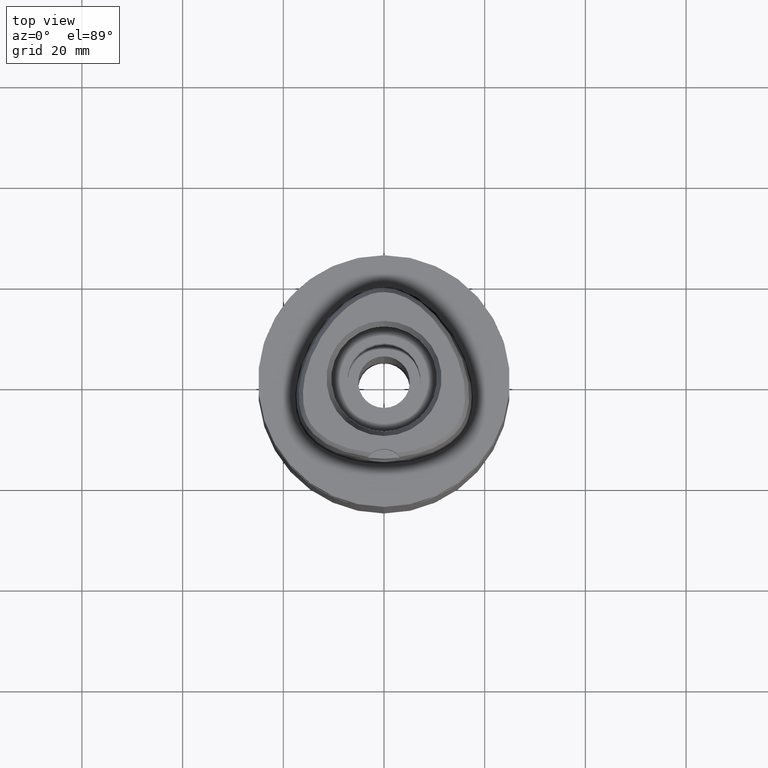
[diagram: clean part render]
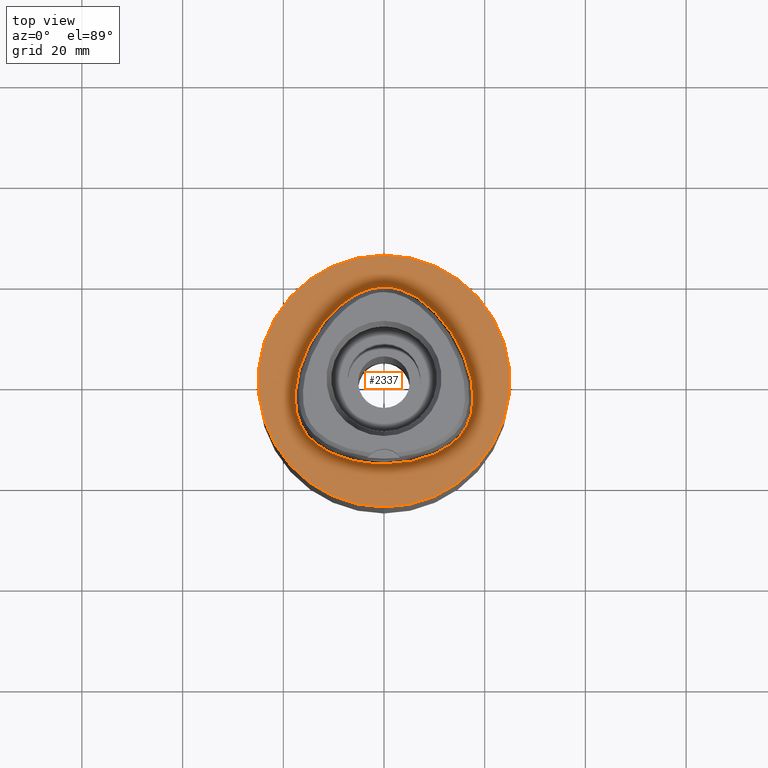
[diagram: same view with one face highlighted and labeled with its STEP entity id]
A machine part, top view. The second image highlights one B-rep face of the part: STEP entity #2337.
In plain terms, the highlighted planar face has unit normal (0, 0, -1).
Its self-contained STEP definition (entity closure, byte-faithful):
#276=CARTESIAN_POINT('',(0.E0,0.E0,0.E0));
#277=DIRECTION('',(0.E0,0.E0,-1.E0));
#278=DIRECTION('',(0.E0,-1.E0,0.E0));
#279=AXIS2_PLACEMENT_3D('',#276,#277,#278);
#284=CARTESIAN_POINT('',(0.E0,0.E0,0.E0));
#285=DIRECTION('',(0.E0,0.E0,-1.E0));
#286=DIRECTION('',(0.E0,1.E0,0.E0));
#287=AXIS2_PLACEMENT_3D('',#284,#285,#286);
#292=CARTESIAN_POINT('',(-1.725937765651E-11,-1.6455E1,1.598351081119E-13));
#293=CARTESIAN_POINT('',(7.520157929342E-1,-1.6455E1,1.598351081119E-13));
#294=CARTESIAN_POINT('',(2.228751603708E0,-1.639617775798E1,
-7.417973183044E-14));
#295=CARTESIAN_POINT('',(4.393681074047E0,-1.613833024912E1,
1.987639923872E-14));
#296=CARTESIAN_POINT('',(6.413326672136E0,-1.573035282199E1,0.E0));
#297=CARTESIAN_POINT('',(8.249758702177E0,-1.519992803891E1,0.E0));
#298=CARTESIAN_POINT('',(9.881260280086E0,-1.457563775507E1,0.E0));
#299=CARTESIAN_POINT('',(1.130599404993E1,-1.388349981809E1,0.E0));
#300=CARTESIAN_POINT('',(1.253525091458E1,-1.314358966096E1,0.E0));
#301=CARTESIAN_POINT('',(1.358563270400E1,-1.237068193648E1,0.E0));
#302=CARTESIAN_POINT('',(1.447667086138E1,-1.157389547554E1,0.E0));
#303=CARTESIAN_POINT('',(1.522785349031E1,-1.075590864467E1,0.E0));
#304=CARTESIAN_POINT('',(1.584981472881E1,-9.925513410667E0,0.E0));
#305=CARTESIAN_POINT('',(1.636750753720E1,-9.064008785729E0,0.E0));
#306=CARTESIAN_POINT('',(1.680170761781E1,-8.136313534643E0,0.E0));
#307=CARTESIAN_POINT('',(1.716057632778E1,-7.112991831704E0,0.E0));
#308=CARTESIAN_POINT('',(1.743544496102E1,-5.981469960310E0,0.E0));
#309=CARTESIAN_POINT('',(1.761466094266E1,-4.728414923585E0,0.E0));
#310=CARTESIAN_POINT('',(1.768212068540E1,-3.340605398271E0,0.E0));
#311=CARTESIAN_POINT('',(1.761770514147E1,-1.808689938760E0,0.E0));
#312=CARTESIAN_POINT('',(1.739870049570E1,-1.302912755114E-1,0.E0));
#313=CARTESIAN_POINT('',(1.700256973215E1,1.685338659502E0,0.E0));
#314=CARTESIAN_POINT('',(1.641182380327E1,3.611925648949E0,0.E0));
#315=CARTESIAN_POINT('',(1.561965772021E1,5.604409403723E0,0.E0));
#316=CARTESIAN_POINT('',(1.463647989598E1,7.598586442107E0,0.E0));
#317=CARTESIAN_POINT('',(1.348925047965E1,9.524885933704E0,0.E0));
#318=CARTESIAN_POINT('',(1.221603812654E1,1.132228715007E1,0.E0));
#319=CARTESIAN_POINT('',(1.086624200261E1,1.293684755208E1,0.E0));
#320=CARTESIAN_POINT('',(9.488798660829E0,1.433550899110E1,0.E0));
#321=CARTESIAN_POINT('',(8.122181354898E0,1.550918780252E1,0.E0));
#322=CARTESIAN_POINT('',(6.793933088004E0,1.646481028605E1,0.E0));
#323=CARTESIAN_POINT('',(5.519398583981E0,1.722019252600E1,0.E0));
#324=CARTESIAN_POINT('',(4.304850156292E0,1.779710622382E1,0.E0));
#325=CARTESIAN_POINT('',(3.150245309225E0,1.821729155277E1,0.E0));
#326=CARTESIAN_POINT('',(2.051084138601E0,1.850002548487E1,1.972913256226E-14));
#327=CARTESIAN_POINT('',(1.002630798547E0,1.866093222631E1,
-7.363012511162E-14));
#328=CARTESIAN_POINT('',(3.294668735290E-1,1.869499999998E1,
1.586508702189E-13));
#329=CARTESIAN_POINT('',(7.243243713352E-11,1.869499999998E1,
1.586508702189E-13));
#334=CARTESIAN_POINT('',(7.243243713352E-11,1.869499999998E1,
1.586508702189E-13));
#335=CARTESIAN_POINT('',(-3.295346810893E-1,1.869499999998E1,
1.586508702189E-13));
#336=CARTESIAN_POINT('',(-1.002816635253E0,1.866092054673E1,
-7.363012511162E-14));
#337=CARTESIAN_POINT('',(-2.051467965772E0,1.849994924685E1,
1.972913256226E-14));
#338=CARTESIAN_POINT('',(-3.150626846185E0,1.821717389381E1,0.E0));
#339=CARTESIAN_POINT('',(-4.305359233640E0,1.779689853106E1,0.E0));
#340=CARTESIAN_POINT('',(-5.520100199623E0,1.721982803341E1,0.E0));
#341=CARTESIAN_POINT('',(-6.794937412297E0,1.646416359564E1,0.E0));
#342=CARTESIAN_POINT('',(-8.123433265851E0,1.550821377042E1,0.E0));
#343=CARTESIAN_POINT('',(-9.490312704232E0,1.433410498861E1,0.E0));
#344=CARTESIAN_POINT('',(-1.086790097666E1,1.293503111676E1,0.E0));
#345=CARTESIAN_POINT('',(-1.221778655090E1,1.132001999159E1,0.E0));
#346=CARTESIAN_POINT('',(-1.349084322155E1,9.522442827619E0,0.E0));
#347=CARTESIAN_POINT('',(-1.463800236197E1,7.595790897107E0,0.E0));
#348=CARTESIAN_POINT('',(-1.562087341270E1,5.601657312162E0,0.E0));
#349=CARTESIAN_POINT('',(-1.641266421024E1,3.609501386790E0,0.E0));
#350=CARTESIAN_POINT('',(-1.700306591915E1,1.683406591524E0,0.E0));
#351=CARTESIAN_POINT('',(-1.739894003460E1,-1.317626643431E-1,0.E0));
#352=CARTESIAN_POINT('',(-1.761776091664E1,-1.809452524718E0,0.E0));
#353=CARTESIAN_POINT('',(-1.768211304797E1,-3.341239490188E0,0.E0));
#354=CARTESIAN_POINT('',(-1.761463184734E1,-4.728736750790E0,0.E0));
#355=CARTESIAN_POINT('',(-1.743534810294E1,-5.981912765486E0,0.E0));
#356=CARTESIAN_POINT('',(-1.716056200202E1,-7.113161076556E0,0.E0));
#357=CARTESIAN_POINT('',(-1.680106263466E1,-8.137911188621E0,0.E0));
#358=CARTESIAN_POINT('',(-1.636756055432E1,-9.063696987537E0,0.E0));
#359=CARTESIAN_POINT('',(-1.585123900430E1,-9.923298598890E0,0.E0));
#360=CARTESIAN_POINT('',(-1.523006211388E1,-1.075326457979E1,0.E0));
#361=CARTESIAN_POINT('',(-1.447882279527E1,-1.157177837007E1,0.E0));
#362=CARTESIAN_POINT('',(-1.358842904800E1,-1.236840798336E1,0.E0));
#363=CARTESIAN_POINT('',(-1.253815877430E1,-1.314166350474E1,0.E0));
#364=CARTESIAN_POINT('',(-1.130916580395E1,-1.388179589433E1,0.E0));
#365=CARTESIAN_POINT('',(-9.884102085376E0,-1.457442885709E1,0.E0));
#366=CARTESIAN_POINT('',(-8.252387795220E0,-1.519907079270E1,0.E0));
#367=CARTESIAN_POINT('',(-6.415180332125E0,-1.572992406774E1,0.E0));
#368=CARTESIAN_POINT('',(-4.394992750878E0,-1.613813899971E1,
1.987639923872E-14));
#369=CARTESIAN_POINT('',(-2.229291629210E0,-1.639615450772E1,
-7.417973183044E-14));
#370=CARTESIAN_POINT('',(-7.521880088880E-1,-1.6455E1,1.598351081119E-13));
#371=CARTESIAN_POINT('',(-1.725937765651E-11,-1.6455E1,1.598351081119E-13));
#1538=VERTEX_POINT('',#334);
#1539=VERTEX_POINT('',#371);
#1544=CARTESIAN_POINT('',(0.E0,-2.5E1,0.E0));
#1545=CARTESIAN_POINT('',(0.E0,2.5E1,0.E0));
#1546=VERTEX_POINT('',#1544);
#1547=VERTEX_POINT('',#1545);
#2321=CARTESIAN_POINT('',(0.E0,0.E0,0.E0));
#2322=DIRECTION('',(0.E0,0.E0,-1.E0));
#2323=DIRECTION('',(0.E0,-1.E0,0.E0));
#2324=AXIS2_PLACEMENT_3D('',#2321,#2322,#2323);
#2325=PLANE('',#2324);
#2327=ORIENTED_EDGE('',*,*,#2326,.T.);
#2329=ORIENTED_EDGE('',*,*,#2328,.T.);
#2330=EDGE_LOOP('',(#2327,#2329));
#2331=FACE_OUTER_BOUND('',#2330,.F.);
#2333=ORIENTED_EDGE('',*,*,#2332,.T.);
#2334=ORIENTED_EDGE('',*,*,#2304,.T.);
#2335=EDGE_LOOP('',(#2333,#2334));
#2336=FACE_BOUND('',#2335,.F.);
#280=CIRCLE('',#279,2.5E1);
#288=CIRCLE('',#287,2.5E1);
#330=B_SPLINE_CURVE_WITH_KNOTS('',3,(#292,#293,#294,#295,#296,#297,#298,#299,
#300,#301,#302,#303,#304,#305,#306,#307,#308,#309,#310,#311,#312,#313,#314,#315,
#316,#317,#318,#319,#320,#321,#322,#323,#324,#325,#326,#327,#328,#329),
.UNSPECIFIED.,.F.,.F.,(4,1,1,1,1,1,1,1,1,1,1,1,1,1,1,1,1,1,1,1,1,1,1,1,1,1,1,1,
1,1,1,1,1,1,1,4),(0.E0,2.857142857143E-2,5.714285714286E-2,8.571428571429E-2,
1.142857142857E-1,1.428571428571E-1,1.714285714286E-1,2.E-1,2.285714285714E-1,
2.571428571429E-1,2.857142857143E-1,3.142857142857E-1,3.428571428571E-1,
3.714285714286E-1,4.E-1,4.285714285714E-1,4.571428571429E-1,4.857142857143E-1,
5.142857142857E-1,5.428571428571E-1,5.714285714286E-1,6.E-1,6.285714285714E-1,
6.571428571429E-1,6.857142857143E-1,7.142857142857E-1,7.428571428571E-1,
7.714285714286E-1,8.E-1,8.285714285714E-1,8.571428571429E-1,8.857142857143E-1,
9.142857142857E-1,9.428571428571E-1,9.714285714286E-1,1.E0),.UNSPECIFIED.);
#372=B_SPLINE_CURVE_WITH_KNOTS('',3,(#334,#335,#336,#337,#338,#339,#340,#341,
#342,#343,#344,#345,#346,#347,#348,#349,#350,#351,#352,#353,#354,#355,#356,#357,
#358,#359,#360,#361,#362,#363,#364,#365,#366,#367,#368,#369,#370,#371),
.UNSPECIFIED.,.F.,.F.,(4,1,1,1,1,1,1,1,1,1,1,1,1,1,1,1,1,1,1,1,1,1,1,1,1,1,1,1,
1,1,1,1,1,1,1,4),(0.E0,2.857142857143E-2,5.714285714286E-2,8.571428571429E-2,
1.142857142857E-1,1.428571428571E-1,1.714285714286E-1,2.E-1,2.285714285714E-1,
2.571428571429E-1,2.857142857143E-1,3.142857142857E-1,3.428571428571E-1,
3.714285714286E-1,4.E-1,4.285714285714E-1,4.571428571429E-1,4.857142857143E-1,
5.142857142857E-1,5.428571428571E-1,5.714285714286E-1,6.E-1,6.285714285714E-1,
6.571428571429E-1,6.857142857143E-1,7.142857142857E-1,7.428571428571E-1,
7.714285714286E-1,8.E-1,8.285714285714E-1,8.571428571429E-1,8.857142857143E-1,
9.142857142857E-1,9.428571428571E-1,9.714285714286E-1,1.E0),.UNSPECIFIED.);
#2304=EDGE_CURVE('',#1538,#1539,#372,.T.);
#2326=EDGE_CURVE('',#1546,#1547,#280,.T.);
#2328=EDGE_CURVE('',#1547,#1546,#288,.T.);
#2332=EDGE_CURVE('',#1539,#1538,#330,.T.);
#2337=ADVANCED_FACE('',(#2331,#2336),#2325,.F.);